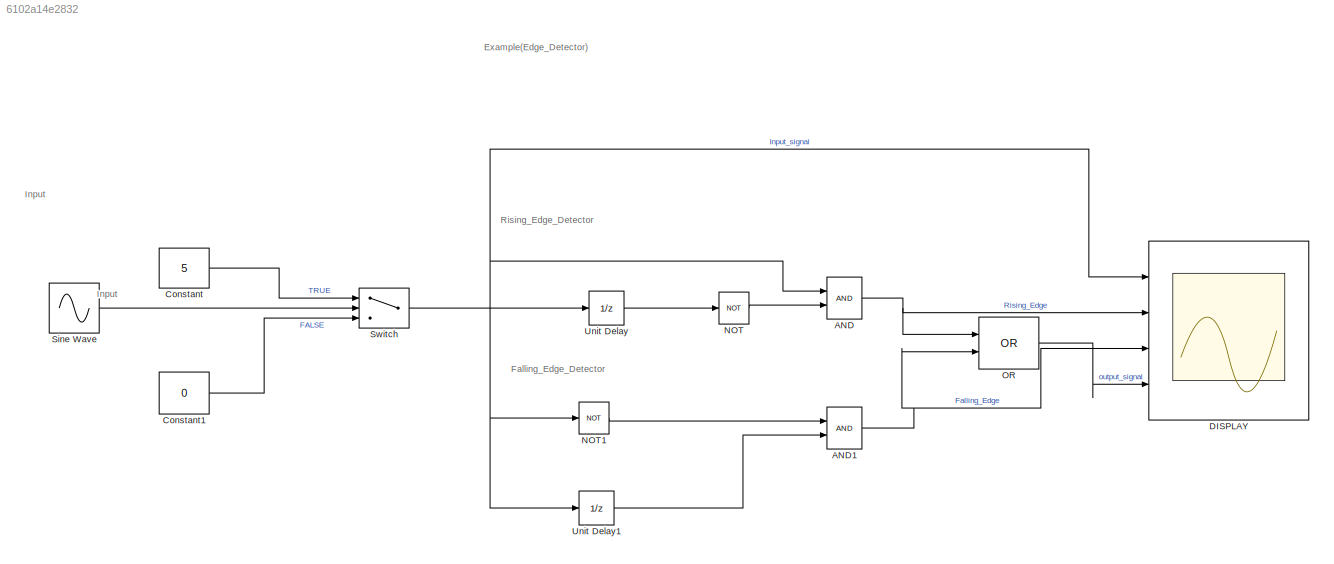
MODEL slx_6102a14e2832
KIND model
CONFIG AbsTol = auto
CONFIG EnableMultiTasking = off
CONFIG FixedStep = auto
CONFIG MaxStep = auto
CONFIG MinStep = auto
CONFIG RelTol = 1e-3
CONFIG SampleTimeConstraint = Unconstrained
CONFIG Solver = VariableStepAuto
CONFIG SolverName = VariableStepAuto
CONFIG StartTime = 0.0
CONFIG StopTime = 0.05
BLOCK [Logic] AND
  AllPortsSameDT = off
  IconShape = distinctive
  OutDataTypeStr = boolean
  Ports = [2, 1]
BLOCK [Logic] AND1
  AllPortsSameDT = off
  IconShape = distinctive
  OutDataTypeStr = boolean
  Ports = [2, 1]
BLOCK [Constant] Constant
  Value = 5
BLOCK [Constant] Constant1
  Value = 0
BLOCK [Scope] DISPLAY
  Floating = off
  NumInputPorts = 4
  Ports = [4]
  ScopeSpecificationString = Simulink.scopes.TimeScopeBlockCfg('CurrentConfiguration', extmgr.ConfigurationSet(extmgr.Configuration('Core','General UI',true),extmgr.Configuration('Core','Source UI',true),extmgr.Configuration('Sources','WiredSimulink',true),extmgr.Configuration('Visuals','Time Domain',true,'SerializedDisplays',{struct('MinYLimReal','-0.625','MaxYLimReal','5.625','YLabelReal','','MinYLimMag','0.00000','MaxYLimM...<+3336ch>
BLOCK [Logic] NOT
  AllPortsSameDT = off
  IconShape = distinctive
  Operator = NOT
  OutDataTypeStr = boolean
  Ports = [1, 1]
BLOCK [Logic] NOT1
  AllPortsSameDT = off
  IconShape = distinctive
  Operator = NOT
  OutDataTypeStr = boolean
  Ports = [1, 1]
BLOCK [Logic] OR
  AllPortsSameDT = off
  IconShape = distinctive
  Operator = OR
  OutDataTypeStr = boolean
  Ports = [2, 1]
BLOCK [Sin] Sine Wave
  Amplitude = 5
  Frequency = 314
  Ports = [0, 1]
  SampleTime = 0
BLOCK [Switch] Switch
  Criteria = u2 > Threshold
  InputSameDT = off
  SaturateOnIntegerOverflow = off
BLOCK [UnitDelay] Unit Delay
  HasFrameUpgradeWarning = on
  SampleTime = -1
BLOCK [UnitDelay] Unit Delay1
  HasFrameUpgradeWarning = on
  SampleTime = -1
ANNOTATION (root): Input
ANNOTATION (root): Falling_Edge_Detector
ANNOTATION (root): Rising_Edge_Detector
ANNOTATION (root): Example(Edge_Detector)
NET AND1:1 -> DISPLAY:3, OR:2
NET AND:1 -> DISPLAY:2, OR:1
LINE Constant1:1 -> Switch:3
LINE Constant:1 -> Switch:1
LINE NOT1:1 -> AND1:1
LINE NOT:1 -> AND:2
LINE OR:1 -> DISPLAY:4
LINE Sine Wave:1 -> Switch:2
NET Switch:1 -> AND:1, DISPLAY:1, NOT1:1, Unit Delay1:1, Unit Delay:1
LINE Unit Delay1:1 -> AND1:2
LINE Unit Delay:1 -> NOT:1
note: NET lines group one-source signal fan-out (src -> all destinations, sorted); 1:1 wires keep LINE
